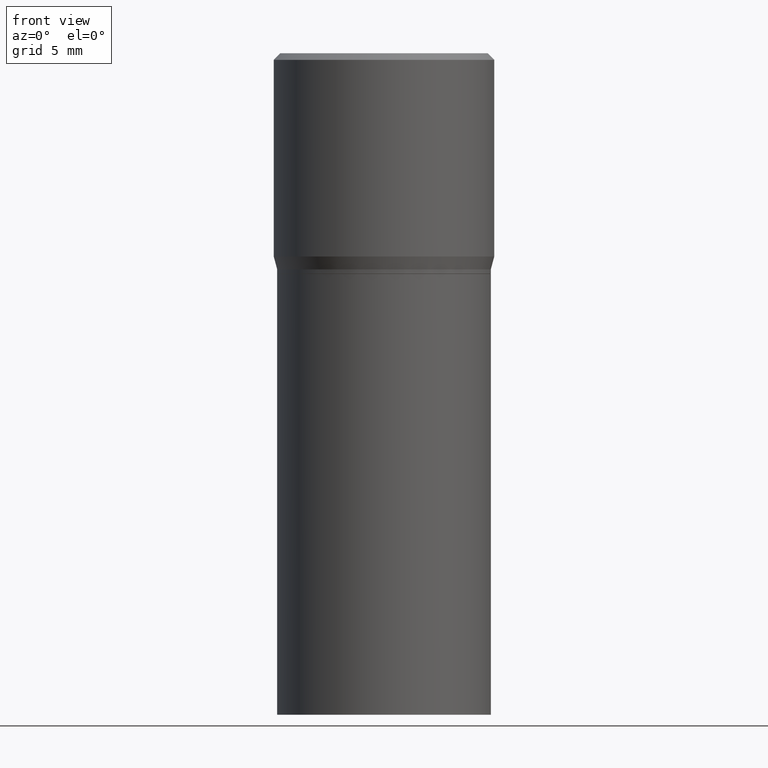
[diagram: clean part render]
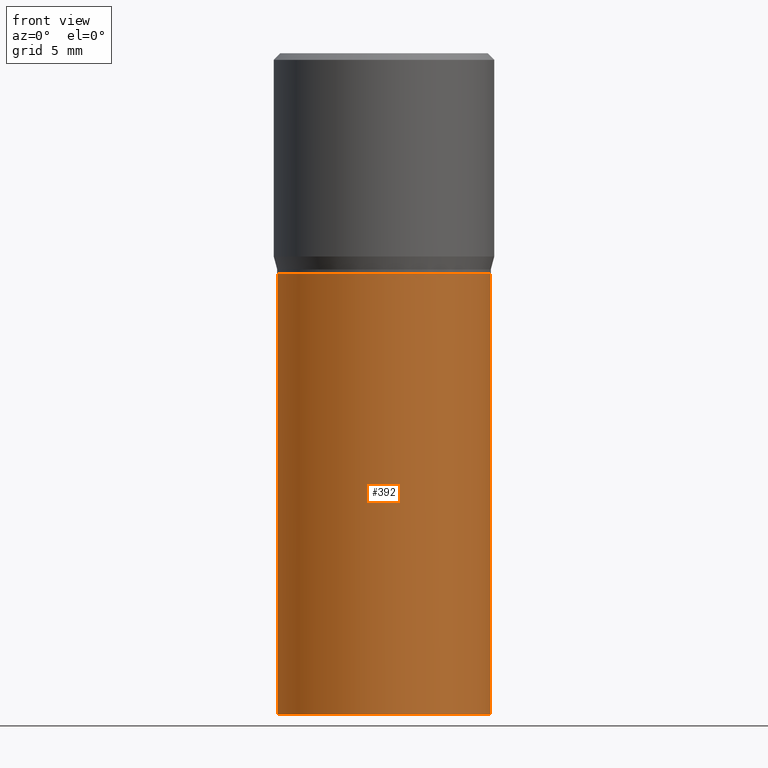
[diagram: same view with one face highlighted and labeled with its STEP entity id]
A machine part, front view. The second image highlights one B-rep face of the part: STEP entity #392.
In plain terms, the highlighted cylindrical surface (partial cylindrical patch) has radius 6.1519 mm, axis along (-0, 0, 1).
Its self-contained STEP definition (entity closure, byte-faithful):
#4 = CARTESIAN_POINT ( 'NONE',  ( 0.2422000000000000264, -1.691273560535613991E-15, 1.181010015097775692E-29 ) ) ;
#9 = DIRECTION ( 'NONE',  ( -2.445468806185136597E-29, 3.491481338843145583E-15, 1.000000000000000000 ) ) ;
#18 = CIRCLE ( 'NONE', #161, 0.2422000000000000264 ) ;
#25 = VERTEX_POINT ( 'NONE', #221 ) ;
#29 = VECTOR ( 'NONE', #151, 39.37007874015748143 ) ;
#55 = LINE ( 'NONE', #396, #86 ) ;
#73 = ORIENTED_EDGE ( 'NONE', *, *, #156, .F. ) ;
#85 = LINE ( 'NONE', #4, #29 ) ;
#86 = VECTOR ( 'NONE', #113, 39.37007874015748143 ) ;
#113 = DIRECTION ( 'NONE',  ( -2.445468806185136877E-29, 3.491481338843145188E-15, 1.000000000000000000 ) ) ;
#124 = DIRECTION ( 'NONE',  ( -2.445468806185136597E-29, 3.491481338843145583E-15, 1.000000000000000000 ) ) ;
#128 = CARTESIAN_POINT ( 'NONE',  ( -0.2422000000000000264, -1.770546832832183337E-15, -0.5000000000000001110 ) ) ;
#151 = DIRECTION ( 'NONE',  ( -2.445468806185136877E-29, 3.491481338843145188E-15, 1.000000000000000000 ) ) ;
#156 = EDGE_CURVE ( 'NONE', #165, #322, #55, .T. ) ;
#161 = AXIS2_PLACEMENT_3D ( 'NONE', #406, #224, #453 ) ;
#165 = VERTEX_POINT ( 'NONE', #266 ) ;
#178 = AXIS2_PLACEMENT_3D ( 'NONE', #404, #9, #400 ) ;
#185 = EDGE_CURVE ( 'NONE', #25, #409, #85, .T. ) ;
#204 = EDGE_CURVE ( 'NONE', #165, #25, #424, .T. ) ;
#218 = EDGE_CURVE ( 'NONE', #322, #409, #18, .T. ) ;
#221 = CARTESIAN_POINT ( 'NONE',  ( 0.2422000000000000264, -6.928495568800332365E-15, -1.500000000000000222 ) ) ;
#224 = DIRECTION ( 'NONE',  ( -2.445468806185136597E-29, 3.491481338843145583E-15, 1.000000000000000000 ) ) ;
#239 = FACE_OUTER_BOUND ( 'NONE', #341, .T. ) ;
#244 = ORIENTED_EDGE ( 'NONE', *, *, #218, .F. ) ;
#251 = ORIENTED_EDGE ( 'NONE', *, *, #204, .T. ) ;
#264 = CARTESIAN_POINT ( 'NONE',  ( 3.668203209277704895E-29, -5.237222008264718177E-15, -1.500000000000000222 ) ) ;
#266 = CARTESIAN_POINT ( 'NONE',  ( -0.2422000000000000264, -1.770546832832183337E-15, -1.500000000000000222 ) ) ;
#272 = DIRECTION ( 'NONE',  ( 1.000000000000000000, -6.982962677686265922E-15, 0.000000000000000000 ) ) ;
#300 = CARTESIAN_POINT ( 'NONE',  ( 0.2422000000000000264, -3.437014229957187177E-15, -0.5000000000000001110 ) ) ;
#303 = AXIS2_PLACEMENT_3D ( 'NONE', #264, #124, #272 ) ;
#322 = VERTEX_POINT ( 'NONE', #128 ) ;
#341 = EDGE_LOOP ( 'NONE', ( #73, #251, #420, #244 ) ) ;
#368 = CYLINDRICAL_SURFACE ( 'NONE', #178, 0.2422000000000000264 ) ;
#392 = ADVANCED_FACE ( 'NONE', ( #239 ), #368, .T. ) ;
#396 = CARTESIAN_POINT ( 'NONE',  ( -0.2422000000000000264, 1.720934506010962838E-15, -1.191366078859738205E-29 ) ) ;
#400 = DIRECTION ( 'NONE',  ( 1.000000000000000000, -6.982962677686266711E-15, 4.876176775795935232E-29 ) ) ;
#404 = CARTESIAN_POINT ( 'NONE',  ( 0.000000000000000000, 0.000000000000000000, 0.000000000000000000 ) ) ;
#406 = CARTESIAN_POINT ( 'NONE',  ( 1.222734403092568719E-29, -1.745740669421573186E-15, -0.5000000000000001110 ) ) ;
#409 = VERTEX_POINT ( 'NONE', #300 ) ;
#420 = ORIENTED_EDGE ( 'NONE', *, *, #185, .T. ) ;
#424 = CIRCLE ( 'NONE', #303, 0.2422000000000000264 ) ;
#453 = DIRECTION ( 'NONE',  ( 1.000000000000000000, -6.982962677686266711E-15, 0.000000000000000000 ) ) ;